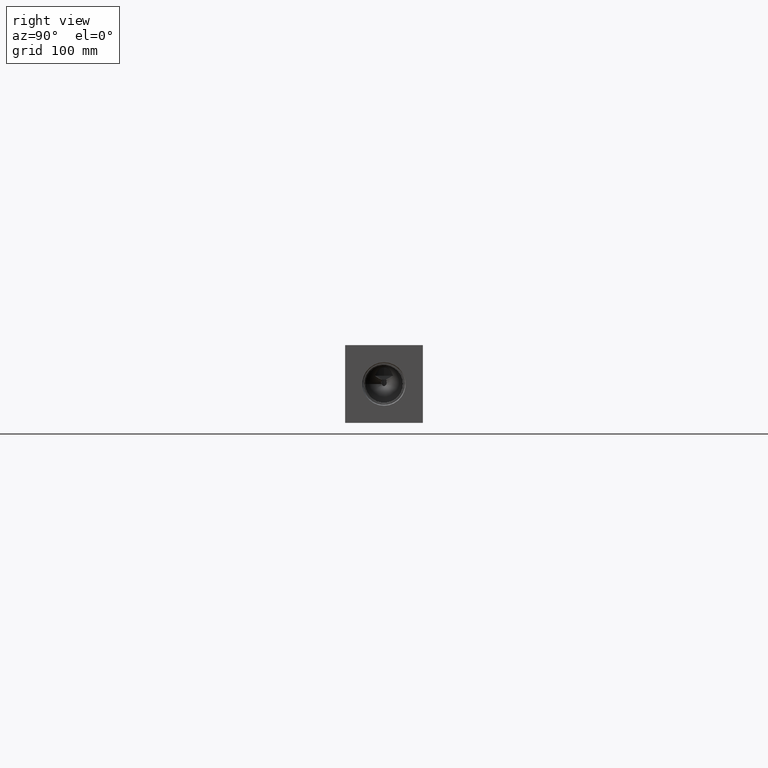
[diagram: clean part render]
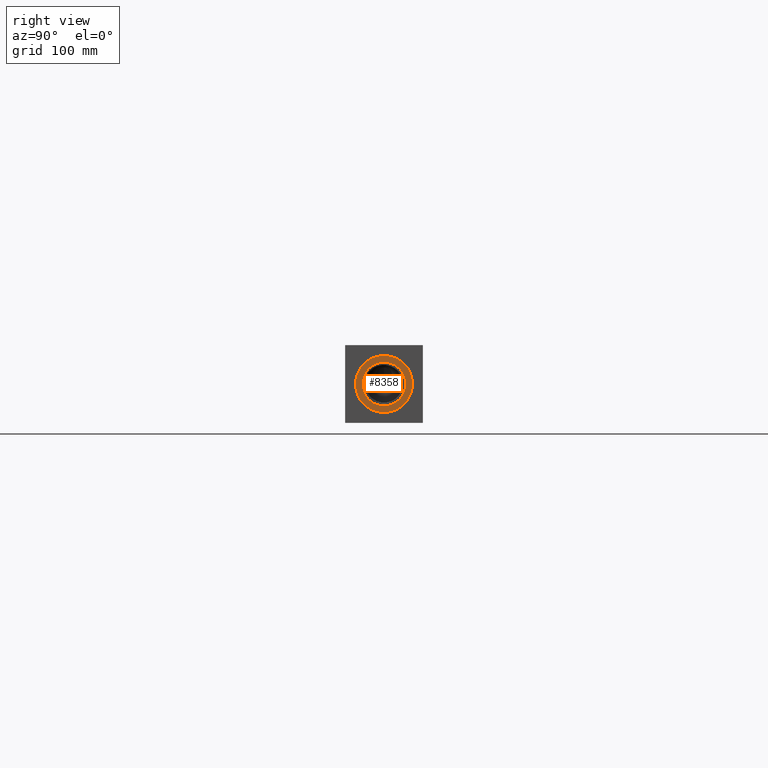
[diagram: same view with one face highlighted and labeled with its STEP entity id]
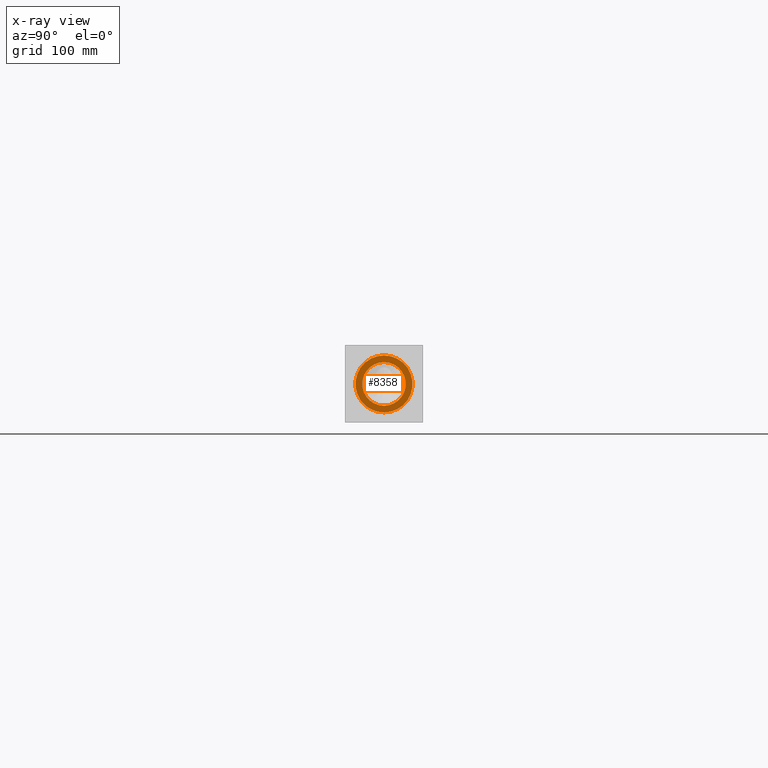
[diagram: x-ray of the same camera — body ghosted, the highlighted face saturated]
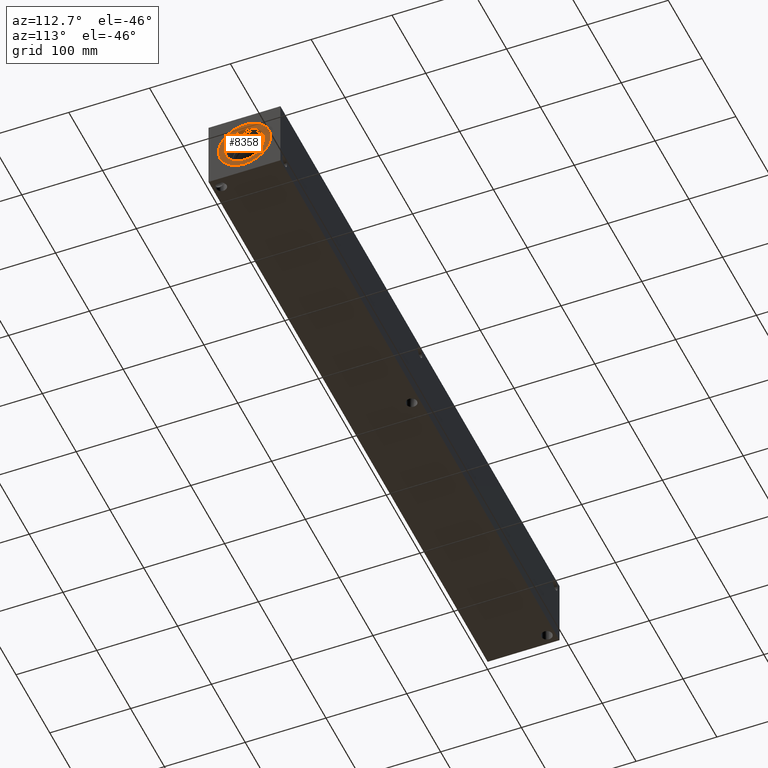
[diagram: same view with one face highlighted and labeled with its STEP entity id]
A machine part, right view. The second image highlights one B-rep face of the part: STEP entity #8358.
The next image is the same camera in x-ray: the body ghosted, the highlighted face saturated — about 0% of this face is hidden behind the body in this view.
A second angle (auxiliary view) of the same face is appended — the face is thin or edge-on in the first view.
In plain terms, the highlighted planar face has unit normal (-1, 0, 0).
Its self-contained STEP definition (entity closure, byte-faithful):
#296=CIRCLE('',#8874,32.5628);
#297=CIRCLE('',#8875,32.5628);
#298=CIRCLE('',#8877,24.9047);
#299=CIRCLE('',#8878,24.9047);
#381=FACE_BOUND('',#1657,.T.);
#1163=FACE_OUTER_BOUND('',#1656,.T.);
#1656=EDGE_LOOP('',(#7303,#7304));
#1657=EDGE_LOOP('',(#7305,#7306));
#3887=VERTEX_POINT('',#14587);
#3888=VERTEX_POINT('',#14589);
#3889=VERTEX_POINT('',#14593);
#3890=VERTEX_POINT('',#14594);
#5040=EDGE_CURVE('',#3887,#3888,#296,.T.);
#5041=EDGE_CURVE('',#3888,#3887,#297,.T.);
#5042=EDGE_CURVE('',#3889,#3890,#298,.T.);
#5043=EDGE_CURVE('',#3890,#3889,#299,.T.);
#7303=ORIENTED_EDGE('',*,*,#5041,.F.);
#7304=ORIENTED_EDGE('',*,*,#5040,.F.);
#7305=ORIENTED_EDGE('',*,*,#5042,.T.);
#7306=ORIENTED_EDGE('',*,*,#5043,.T.);
#7635=PLANE('',#8876);
#8358=ADVANCED_FACE('',(#1163,#381),#7635,.F.);
#8874=AXIS2_PLACEMENT_3D('',#14590,#10589,#10590);
#8875=AXIS2_PLACEMENT_3D('',#14591,#10591,#10592);
#8876=AXIS2_PLACEMENT_3D('',#14592,#10593,#10594);
#8877=AXIS2_PLACEMENT_3D('',#14595,#10595,#10596);
#8878=AXIS2_PLACEMENT_3D('',#14596,#10597,#10598);
#10589=DIRECTION('center_axis',(-1.,0.,0.));
#10590=DIRECTION('ref_axis',(0.,0.,1.));
#10591=DIRECTION('center_axis',(-1.,0.,0.));
#10592=DIRECTION('ref_axis',(0.,0.,1.));
#10593=DIRECTION('center_axis',(-1.,0.,0.));
#10594=DIRECTION('ref_axis',(0.,0.,1.));
#10595=DIRECTION('center_axis',(-1.,0.,0.));
#10596=DIRECTION('ref_axis',(0.,0.,1.));
#10597=DIRECTION('center_axis',(-1.,0.,0.));
#10598=DIRECTION('ref_axis',(0.,0.,1.));
#14587=CARTESIAN_POINT('',(824.7126,44.45,77.0128));
#14589=CARTESIAN_POINT('',(824.7126,44.45,11.8872));
#14590=CARTESIAN_POINT('Origin',(824.7126,44.45,44.45));
#14591=CARTESIAN_POINT('Origin',(824.7126,44.45,44.45));
#14592=CARTESIAN_POINT('Origin',(824.7126,44.45,19.5453));
#14593=CARTESIAN_POINT('',(824.7126,44.45,19.5453));
#14594=CARTESIAN_POINT('',(824.7126,44.45,69.3547));
#14595=CARTESIAN_POINT('Origin',(824.7126,44.45,44.45));
#14596=CARTESIAN_POINT('Origin',(824.7126,44.45,44.45));